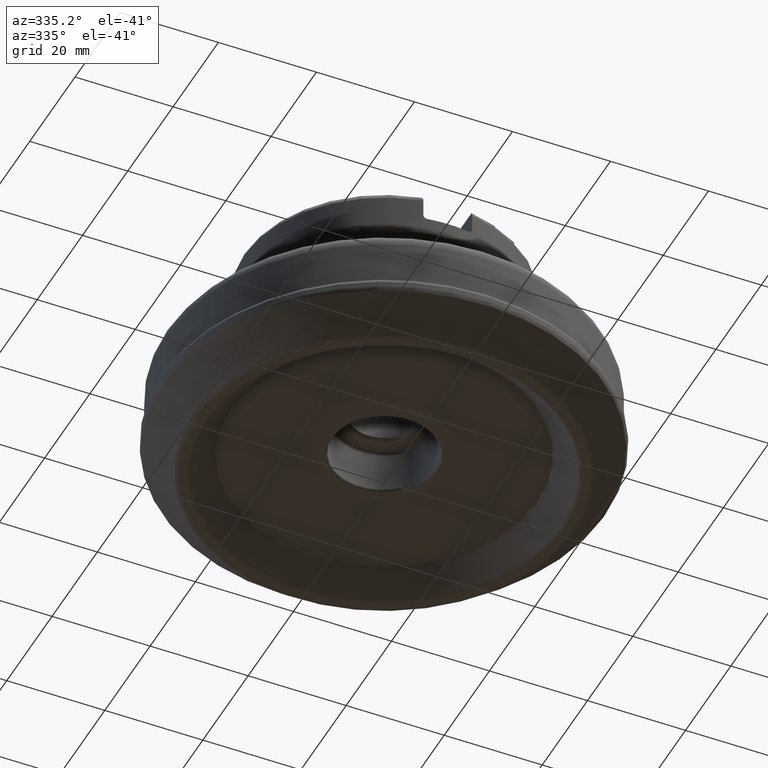
[diagram: clean part render]
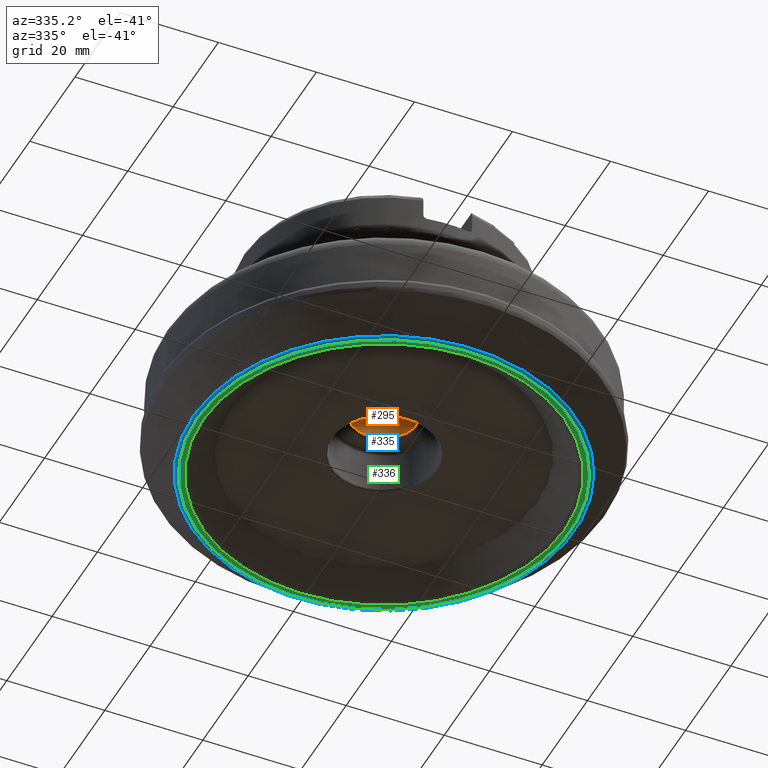
[diagram: same view with three faces highlighted in distinct colors, each labeled with its STEP entity id]
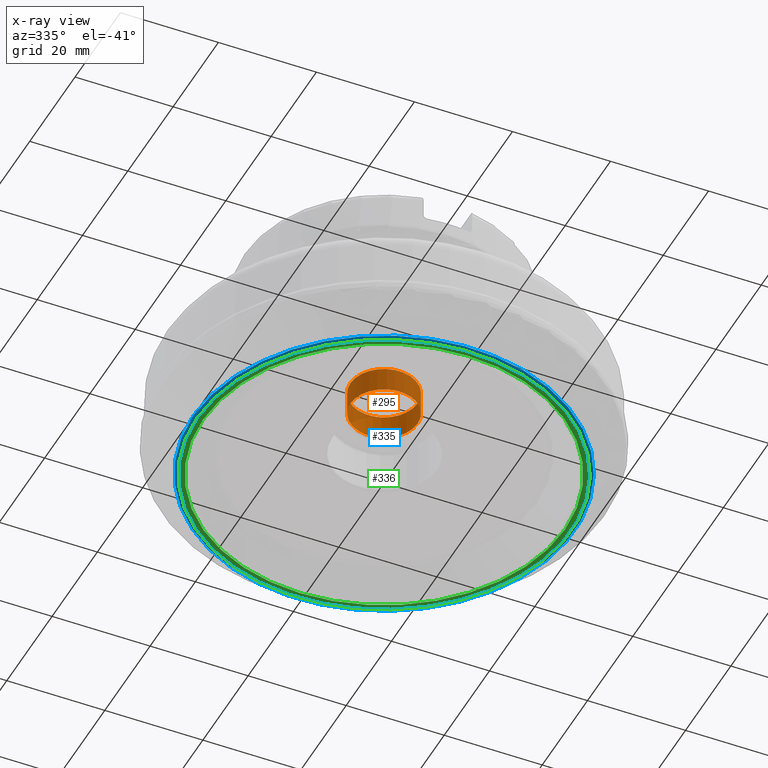
[diagram: x-ray of the same camera — body ghosted, the three highlighted faces saturated]
A machine part, auxiliary view with three faces highlighted in distinct colors.
The next image is the same camera in x-ray (body ghosted, the three faces saturated) — at least one of them is partly hidden behind the body in this view.
Their STEP definitions:

[orange] entity #295 — the highlighted cylindrical surface (bore or boss wall) has radius 6.8453 mm, axis along (-0, 0, -1).
#203=CYLINDRICAL_SURFACE('',#1125,6.8453);
#295=ADVANCED_FACE('',(#377,#378),#203,.F.);
#377=FACE_BOUND('',#477,.T.);
#378=FACE_BOUND('',#478,.T.);
#477=EDGE_LOOP('',(#639));
#478=EDGE_LOOP('',(#640));
#639=ORIENTED_EDGE('',*,*,#927,.T.);
#640=ORIENTED_EDGE('',*,*,#928,.T.);
#833=VERTEX_POINT('',#1966);
#834=VERTEX_POINT('',#1968);
#927=EDGE_CURVE('',#833,#833,#997,.T.);
#928=EDGE_CURVE('',#834,#834,#998,.T.);
#997=CIRCLE('',#1123,6.8453);
#998=CIRCLE('',#1124,6.8453);
#1123=AXIS2_PLACEMENT_3D('',#1965,#1286,#1287);
#1124=AXIS2_PLACEMENT_3D('',#1967,#1288,#1289);
#1125=AXIS2_PLACEMENT_3D('',#1969,#1290,#1291);
#1286=DIRECTION('',(1.17145536458252E-15,0.,1.));
#1287=DIRECTION('',(1.,0.,-1.01367272492181E-15));
#1288=DIRECTION('',(-1.17145536458252E-15,0.,-1.));
#1289=DIRECTION('',(-1.,0.,1.26709090615226E-15));
#1290=DIRECTION('',(-1.17145536458252E-15,0.,-1.));
#1291=DIRECTION('',(-1.,0.,1.17145536458252E-15));
#1965=CARTESIAN_POINT('',(2.33705345234214E-14,0.,19.95));
#1966=CARTESIAN_POINT('',(6.84530000000002,0.,19.95));
#1967=CARTESIAN_POINT('',(1.75132577005087E-14,0.,14.95));
#1968=CARTESIAN_POINT('',(-6.84529999999998,0.,14.95));
#1969=CARTESIAN_POINT('',(0.,0.,0.));

[blue] entity #335 — the highlighted face is a SurfaceOfRevolution surface.
#119=SURFACE_OF_REVOLUTION('',#1074,#140);
#140=AXIS1_PLACEMENT('',#2127,#1419);
#335=ADVANCED_FACE('',(#429,#430),#119,.F.);
#429=FACE_BOUND('',#543,.T.);
#430=FACE_BOUND('',#544,.T.);
#543=EDGE_LOOP('',(#755));
#544=EDGE_LOOP('',(#756));
#755=ORIENTED_EDGE('',*,*,#960,.T.);
#756=ORIENTED_EDGE('',*,*,#961,.F.);
#854=VERTEX_POINT('',#2115);
#855=VERTEX_POINT('',#2119);
#960=EDGE_CURVE('',#854,#854,#1018,.T.);
#961=EDGE_CURVE('',#855,#855,#1019,.T.);
#1018=CIRCLE('',#1175,38.8632176102241);
#1019=CIRCLE('',#1176,38.1);
#1074=B_SPLINE_CURVE_WITH_KNOTS('',3,(#2120,#2121,#2122,#2123,#2124,#2125,
#2126),.UNSPECIFIED.,.F.,.F.,(4,1,1,1,4),(0.,0.25,0.5,0.75,1.),
 .UNSPECIFIED.);
#1175=AXIS2_PLACEMENT_3D('',#2114,#1413,#1414);
#1176=AXIS2_PLACEMENT_3D('',#2118,#1417,#1418);
#1413=DIRECTION('',(0.,0.,-1.));
#1414=DIRECTION('',(-1.,0.,0.));
#1417=DIRECTION('',(0.,0.,-1.));
#1418=DIRECTION('',(-1.,0.,0.));
#1419=DIRECTION('',(0.,0.,-1.));
#2114=CARTESIAN_POINT('',(0.,0.,0.310386457823437));
#2115=CARTESIAN_POINT('',(-38.8632176102241,0.,0.310386457823437));
#2118=CARTESIAN_POINT('',(0.,0.,2.9167640525074E-14));
#2119=CARTESIAN_POINT('',(-38.1,0.,2.9167640525074E-14));
#2120=CARTESIAN_POINT('',(-4.99999999999999,-37.7704911273338,2.88397777881144E-14));
#2121=CARTESIAN_POINT('',(-5.00011238932104,-37.8435360840301,-0.000308787121750216));
#2122=CARTESIAN_POINT('',(-4.99373147690274,-37.9894956748972,0.013465746960606));
#2123=CARTESIAN_POINT('',(-4.96809993028299,-38.1994148595195,0.0749525860559949));
#2124=CARTESIAN_POINT('',(-4.92997786111397,-38.3918416627161,0.174505461453099));
#2125=CARTESIAN_POINT('',(-4.89619915971714,-38.504492908686,0.262214625218724));
#2126=CARTESIAN_POINT('',(-4.8772319091455,-38.5559631175782,0.310386457823437));
#2127=CARTESIAN_POINT('',(0.,0.,0.));

[green] entity #336 — the highlighted face is a SurfaceOfRevolution surface.
#120=SURFACE_OF_REVOLUTION('',#238,#141);
#141=AXIS1_PLACEMENT('',#2131,#1423);
#238=LINE('',#2130,#274);
#274=VECTOR('',#1422,0.591392019615817);
#336=ADVANCED_FACE('',(#431,#432),#120,.F.);
#431=FACE_BOUND('',#545,.T.);
#432=FACE_BOUND('',#546,.T.);
#545=EDGE_LOOP('',(#757));
#546=EDGE_LOOP('',(#758));
#757=ORIENTED_EDGE('',*,*,#961,.T.);
#758=ORIENTED_EDGE('',*,*,#962,.F.);
#855=VERTEX_POINT('',#2119);
#856=VERTEX_POINT('',#2129);
#961=EDGE_CURVE('',#855,#855,#1019,.T.);
#962=EDGE_CURVE('',#856,#856,#1020,.T.);
#1019=CIRCLE('',#1176,38.1);
#1020=CIRCLE('',#1177,36.927537022603);
#1176=AXIS2_PLACEMENT_3D('',#2118,#1417,#1418);
#1177=AXIS2_PLACEMENT_3D('',#2128,#1420,#1421);
#1417=DIRECTION('',(0.,0.,-1.));
#1418=DIRECTION('',(-1.,0.,0.));
#1420=DIRECTION('',(0.,0.,-1.));
#1421=DIRECTION('',(-1.,0.,0.));
#1422=DIRECTION('',(-0.00153861661213484,-0.999989881184751,-0.00422731439903772));
#1423=DIRECTION('',(0.,0.,-1.));
#2118=CARTESIAN_POINT('',(0.,0.,2.9167640525074E-14));
#2119=CARTESIAN_POINT('',(-38.1,0.,2.9167640525074E-14));
#2128=CARTESIAN_POINT('',(0.,0.,0.00500000000002907));
#2129=CARTESIAN_POINT('',(-36.927537022603,0.,0.00500000000002907));
#2130=CARTESIAN_POINT('',(-4.99909007441433,-37.1791050919046,0.00250000000003243));
#2131=CARTESIAN_POINT('',(0.,0.,0.));